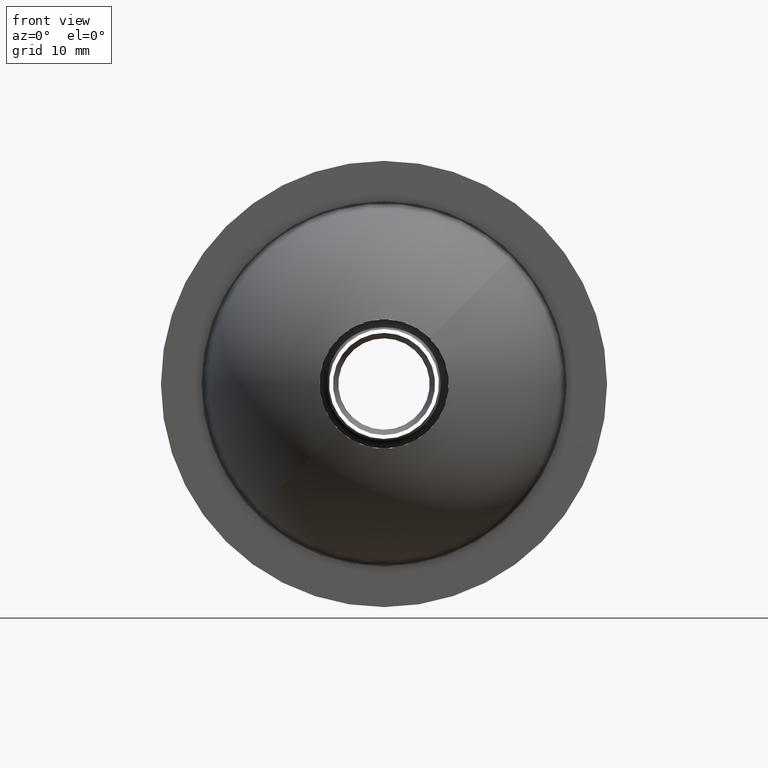
[diagram: clean part render]
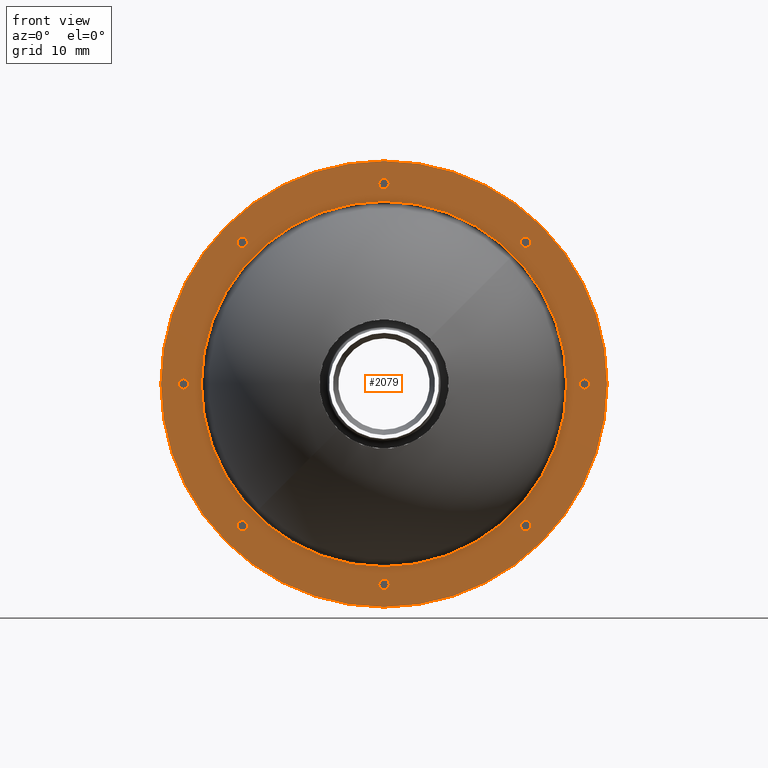
[diagram: same view with one face highlighted and labeled with its STEP entity id]
A machine part, front view. The second image highlights one B-rep face of the part: STEP entity #2079.
In plain terms, the highlighted planar face has unit normal (0, 1, 0).
Its self-contained STEP definition (entity closure, byte-faithful):
#42 = VERTEX_POINT ( 'NONE', #3492 ) ;
#53 = DIRECTION ( 'NONE',  ( 0.000000000000000000, 1.000000000000000000, 0.000000000000000000 ) ) ;
#93 = AXIS2_PLACEMENT_3D ( 'NONE', #969, #3651, #2121 ) ;
#124 = CARTESIAN_POINT ( 'NONE',  ( 39.48401894960830560, -21.91086588718419748, 0.000000000000000000 ) ) ;
#157 = CIRCLE ( 'NONE', #2049, 0.7999999999999986011 ) ;
#168 = VERTEX_POINT ( 'NONE', #2862 ) ;
#178 = EDGE_CURVE ( 'NONE', #3689, #1144, #1248, .T. ) ;
#179 = CIRCLE ( 'NONE', #3536, 0.7999999999999986011 ) ;
#189 = CARTESIAN_POINT ( 'NONE',  ( 30.40432916639154826, -21.91086588718419748, -21.12031021678270548 ) ) ;
#219 = DIRECTION ( 'NONE',  ( 0.000000000000000000, 0.000000000000000000, 1.000000000000000000 ) ) ;
#221 = AXIS2_PLACEMENT_3D ( 'NONE', #2807, #3407, #219 ) ;
#226 = DIRECTION ( 'NONE',  ( 0.000000000000000000, 0.000000000000000000, 1.000000000000000000 ) ) ;
#242 = EDGE_CURVE ( 'NONE', #2650, #42, #1193, .T. ) ;
#257 = DIRECTION ( 'NONE',  ( 0.000000000000000000, 1.000000000000000000, 0.000000000000000000 ) ) ;
#260 = CIRCLE ( 'NONE', #1597, 0.7999999999999986011 ) ;
#266 = CIRCLE ( 'NONE', #515, 0.8000000000000020428 ) ;
#304 = VERTEX_POINT ( 'NONE', #315 ) ;
#315 = CARTESIAN_POINT ( 'NONE',  ( 39.48401894960830560, -21.91086588718419748, 0.7999999999999986011 ) ) ;
#325 = AXIS2_PLACEMENT_3D ( 'NONE', #3525, #2333, #2642 ) ;
#329 = VERTEX_POINT ( 'NONE', #3524 ) ;
#379 = ORIENTED_EDGE ( 'NONE', *, *, #2395, .T. ) ;
#399 = VERTEX_POINT ( 'NONE', #1891 ) ;
#413 = EDGE_CURVE ( 'NONE', #42, #2650, #1614, .T. ) ;
#423 = CARTESIAN_POINT ( 'NONE',  ( -22.51598105039169084, -21.91086588718419748, 0.7999999999997821076 ) ) ;
#427 = FACE_BOUND ( 'NONE', #2842, .T. ) ;
#445 = AXIS2_PLACEMENT_3D ( 'NONE', #1868, #2689, #3283 ) ;
#481 = EDGE_CURVE ( 'NONE', #914, #2635, #3691, .T. ) ;
#501 = VERTEX_POINT ( 'NONE', #1395 ) ;
#515 = AXIS2_PLACEMENT_3D ( 'NONE', #1893, #3058, #2193 ) ;
#558 = DIRECTION ( 'NONE',  ( 0.000000000000000000, 1.000000000000000000, 0.000000000000000000 ) ) ;
#618 = EDGE_LOOP ( 'NONE', ( #3661, #3611 ) ) ;
#626 = CIRCLE ( 'NONE', #1107, 0.7999999999999986011 ) ;
#657 = CIRCLE ( 'NONE', #3266, 0.7999999999999986011 ) ;
#680 = CIRCLE ( 'NONE', #1172, 0.8000000000000020428 ) ;
#687 = AXIS2_PLACEMENT_3D ( 'NONE', #1169, #2666, #3239 ) ;
#690 = DIRECTION ( 'NONE',  ( 0.000000000000000000, 0.000000000000000000, 1.000000000000000000 ) ) ;
#703 = EDGE_CURVE ( 'NONE', #168, #2527, #2808, .T. ) ;
#711 = DIRECTION ( 'NONE',  ( 0.000000000000000000, 1.000000000000000000, 0.000000000000000000 ) ) ;
#728 = DIRECTION ( 'NONE',  ( 0.000000000000000000, 1.000000000000000000, 0.000000000000000000 ) ) ;
#733 = PLANE ( 'NONE',  #445 ) ;
#770 = CARTESIAN_POINT ( 'NONE',  ( -22.51598105039169084, -21.91086588718419748, -2.164719683887816881E-13 ) ) ;
#803 = CARTESIAN_POINT ( 'NONE',  ( 8.484018949608307381, -21.91086588718419748, -34.49999999999999289 ) ) ;
#867 = DIRECTION ( 'NONE',  ( 0.000000000000000000, 0.000000000000000000, 1.000000000000000000 ) ) ;
#872 = EDGE_CURVE ( 'NONE', #3315, #329, #2132, .T. ) ;
#886 = EDGE_LOOP ( 'NONE', ( #1642, #998 ) ) ;
#914 = VERTEX_POINT ( 'NONE', #3015 ) ;
#932 = EDGE_CURVE ( 'NONE', #2162, #304, #626, .T. ) ;
#969 = CARTESIAN_POINT ( 'NONE',  ( 8.484018949608307381, -21.91086588718419748, 0.000000000000000000 ) ) ;
#998 = ORIENTED_EDGE ( 'NONE', *, *, #932, .T. ) ;
#1006 = DIRECTION ( 'NONE',  ( 0.000000000000000000, 0.000000000000000000, 1.000000000000000000 ) ) ;
#1009 = DIRECTION ( 'NONE',  ( 0.000000000000000000, 0.000000000000000000, 1.000000000000000000 ) ) ;
#1010 = ORIENTED_EDGE ( 'NONE', *, *, #3115, .T. ) ;
#1065 = DIRECTION ( 'NONE',  ( 0.000000000000000000, 1.000000000000000000, 0.000000000000000000 ) ) ;
#1098 = EDGE_CURVE ( 'NONE', #1228, #1958, #680, .T. ) ;
#1107 = AXIS2_PLACEMENT_3D ( 'NONE', #1373, #3359, #226 ) ;
#1115 = ORIENTED_EDGE ( 'NONE', *, *, #3356, .T. ) ;
#1144 = VERTEX_POINT ( 'NONE', #3044 ) ;
#1163 = AXIS2_PLACEMENT_3D ( 'NONE', #2416, #3299, #690 ) ;
#1169 = CARTESIAN_POINT ( 'NONE',  ( -13.43629126717478250, -21.91086588718419748, 21.92031021678285896 ) ) ;
#1172 = AXIS2_PLACEMENT_3D ( 'NONE', #2019, #3495, #1736 ) ;
#1192 = ORIENTED_EDGE ( 'NONE', *, *, #413, .T. ) ;
#1193 = CIRCLE ( 'NONE', #1553, 28.24999999999999645 ) ;
#1201 = CIRCLE ( 'NONE', #1505, 0.7999999999999986011 ) ;
#1228 = VERTEX_POINT ( 'NONE', #1914 ) ;
#1242 = EDGE_LOOP ( 'NONE', ( #2648, #379 ) ) ;
#1248 = CIRCLE ( 'NONE', #1788, 0.7999999999999986011 ) ;
#1258 = EDGE_CURVE ( 'NONE', #304, #2162, #657, .T. ) ;
#1271 = CARTESIAN_POINT ( 'NONE',  ( -22.51598105039169084, -21.91086588718419748, -2.164719683887816881E-13 ) ) ;
#1276 = VERTEX_POINT ( 'NONE', #2718 ) ;
#1280 = EDGE_CURVE ( 'NONE', #501, #2468, #1201, .T. ) ;
#1281 = FACE_BOUND ( 'NONE', #2396, .T. ) ;
#1312 = EDGE_LOOP ( 'NONE', ( #1115, #3183 ) ) ;
#1373 = CARTESIAN_POINT ( 'NONE',  ( 39.48401894960830560, -21.91086588718419748, 0.000000000000000000 ) ) ;
#1395 = CARTESIAN_POINT ( 'NONE',  ( -22.51598105039169084, -21.91086588718419748, -0.8000000000002150946 ) ) ;
#1409 = EDGE_CURVE ( 'NONE', #2635, #914, #3519, .T. ) ;
#1428 = VERTEX_POINT ( 'NONE', #1483 ) ;
#1483 = CARTESIAN_POINT ( 'NONE',  ( -13.43629126717447342, -21.91086588718419748, -22.72031021678316165 ) ) ;
#1505 = AXIS2_PLACEMENT_3D ( 'NONE', #1271, #3599, #1009 ) ;
#1511 = ORIENTED_EDGE ( 'NONE', *, *, #481, .F. ) ;
#1526 = EDGE_CURVE ( 'NONE', #2527, #168, #3737, .T. ) ;
#1553 = AXIS2_PLACEMENT_3D ( 'NONE', #2052, #2353, #1782 ) ;
#1571 = FACE_BOUND ( 'NONE', #3050, .T. ) ;
#1597 = AXIS2_PLACEMENT_3D ( 'NONE', #3414, #2207, #3378 ) ;
#1608 = EDGE_CURVE ( 'NONE', #1958, #1228, #266, .T. ) ;
#1614 = CIRCLE ( 'NONE', #93, 28.24999999999999645 ) ;
#1642 = ORIENTED_EDGE ( 'NONE', *, *, #1258, .T. ) ;
#1703 = CIRCLE ( 'NONE', #1163, 0.7999999999999986011 ) ;
#1706 = CARTESIAN_POINT ( 'NONE',  ( 30.40432916639154826, -21.91086588718419748, -21.92031021678270619 ) ) ;
#1732 = ORIENTED_EDGE ( 'NONE', *, *, #1526, .T. ) ;
#1736 = DIRECTION ( 'NONE',  ( 0.000000000000000000, 0.000000000000000000, 1.000000000000000000 ) ) ;
#1743 = CARTESIAN_POINT ( 'NONE',  ( 8.484018949608200799, -21.91086588718419748, 31.80000000000000071 ) ) ;
#1744 = ORIENTED_EDGE ( 'NONE', *, *, #2217, .T. ) ;
#1759 = CARTESIAN_POINT ( 'NONE',  ( 8.484018949608632454, -21.91086588718419748, -31.00000000000000000 ) ) ;
#1782 = DIRECTION ( 'NONE',  ( 0.000000000000000000, 0.000000000000000000, 1.000000000000000000 ) ) ;
#1788 = AXIS2_PLACEMENT_3D ( 'NONE', #1706, #257, #2214 ) ;
#1822 = EDGE_LOOP ( 'NONE', ( #1192, #2906 ) ) ;
#1823 = CIRCLE ( 'NONE', #2180, 0.7999999999999986011 ) ;
#1853 = CARTESIAN_POINT ( 'NONE',  ( 8.484018949608307381, -21.91086588718419748, 0.000000000000000000 ) ) ;
#1868 = CARTESIAN_POINT ( 'NONE',  ( 8.484018949608307381, -21.91086588718419748, 0.000000000000000000 ) ) ;
#1891 = CARTESIAN_POINT ( 'NONE',  ( -13.43629126717478250, -21.91086588718419748, 21.12031021678285825 ) ) ;
#1893 = CARTESIAN_POINT ( 'NONE',  ( 8.484018949608200799, -21.91086588718419748, 31.00000000000000000 ) ) ;
#1914 = CARTESIAN_POINT ( 'NONE',  ( 8.484018949608200799, -21.91086588718419748, 30.20000000000000284 ) ) ;
#1935 = AXIS2_PLACEMENT_3D ( 'NONE', #3309, #53, #2966 ) ;
#1958 = VERTEX_POINT ( 'NONE', #1743 ) ;
#1974 = CARTESIAN_POINT ( 'NONE',  ( 8.484018949608310933, -21.91086588718419748, 28.24999999999999645 ) ) ;
#1975 = ORIENTED_EDGE ( 'NONE', *, *, #3100, .T. ) ;
#2019 = CARTESIAN_POINT ( 'NONE',  ( 8.484018949608200799, -21.91086588718419748, 31.00000000000000000 ) ) ;
#2049 = AXIS2_PLACEMENT_3D ( 'NONE', #2917, #558, #867 ) ;
#2052 = CARTESIAN_POINT ( 'NONE',  ( 8.484018949608307381, -21.91086588718419748, 0.000000000000000000 ) ) ;
#2079 = ADVANCED_FACE ( 'NONE', ( #1571, #427, #1281, #2169, #2439, #2745, #2119, #3630, #2457, #3036 ), #733, .F. ) ;
#2119 = FACE_BOUND ( 'NONE', #1242, .T. ) ;
#2121 = DIRECTION ( 'NONE',  ( 0.000000000000000000, 0.000000000000000000, 1.000000000000000000 ) ) ;
#2131 = DIRECTION ( 'NONE',  ( 0.000000000000000000, 0.000000000000000000, 1.000000000000000000 ) ) ;
#2132 = CIRCLE ( 'NONE', #2801, 0.7999999999999986011 ) ;
#2148 = DIRECTION ( 'NONE',  ( 0.000000000000000000, 0.000000000000000000, 1.000000000000000000 ) ) ;
#2153 = CARTESIAN_POINT ( 'NONE',  ( 30.40432916639124272, -21.91086588718419748, 21.92031021678301528 ) ) ;
#2162 = VERTEX_POINT ( 'NONE', #3455 ) ;
#2169 = FACE_BOUND ( 'NONE', #2356, .T. ) ;
#2180 = AXIS2_PLACEMENT_3D ( 'NONE', #3372, #711, #3625 ) ;
#2193 = DIRECTION ( 'NONE',  ( 0.000000000000000000, 0.000000000000000000, 1.000000000000000000 ) ) ;
#2207 = DIRECTION ( 'NONE',  ( 0.000000000000000000, 1.000000000000000000, 0.000000000000000000 ) ) ;
#2214 = DIRECTION ( 'NONE',  ( 0.000000000000000000, 0.000000000000000000, 1.000000000000000000 ) ) ;
#2217 = EDGE_CURVE ( 'NONE', #1428, #1276, #260, .T. ) ;
#2273 = EDGE_CURVE ( 'NONE', #399, #3242, #2327, .T. ) ;
#2327 = CIRCLE ( 'NONE', #687, 0.7999999999999986011 ) ;
#2333 = DIRECTION ( 'NONE',  ( 0.000000000000000000, 1.000000000000000000, 0.000000000000000000 ) ) ;
#2353 = DIRECTION ( 'NONE',  ( 0.000000000000000000, 1.000000000000000000, 0.000000000000000000 ) ) ;
#2356 = EDGE_LOOP ( 'NONE', ( #1975, #3621 ) ) ;
#2395 = EDGE_CURVE ( 'NONE', #329, #3315, #157, .T. ) ;
#2396 = EDGE_LOOP ( 'NONE', ( #1010, #1744 ) ) ;
#2406 = EDGE_LOOP ( 'NONE', ( #2916, #1511 ) ) ;
#2409 = CARTESIAN_POINT ( 'NONE',  ( 30.40432916639124272, -21.91086588718419748, 22.72031021678301244 ) ) ;
#2416 = CARTESIAN_POINT ( 'NONE',  ( -13.43629126717447342, -21.91086588718419748, -21.92031021678316449 ) ) ;
#2439 = FACE_BOUND ( 'NONE', #1312, .T. ) ;
#2448 = DIRECTION ( 'NONE',  ( 0.000000000000000000, 0.000000000000000000, 1.000000000000000000 ) ) ;
#2457 = FACE_OUTER_BOUND ( 'NONE', #2406, .T. ) ;
#2468 = VERTEX_POINT ( 'NONE', #423 ) ;
#2527 = VERTEX_POINT ( 'NONE', #3257 ) ;
#2593 = DIRECTION ( 'NONE',  ( 0.000000000000000000, 0.000000000000000000, 1.000000000000000000 ) ) ;
#2624 = CARTESIAN_POINT ( 'NONE',  ( -13.43629126717478250, -21.91086588718419748, 22.72031021678285612 ) ) ;
#2635 = VERTEX_POINT ( 'NONE', #803 ) ;
#2642 = DIRECTION ( 'NONE',  ( 0.000000000000000000, 0.000000000000000000, 1.000000000000000000 ) ) ;
#2648 = ORIENTED_EDGE ( 'NONE', *, *, #872, .T. ) ;
#2650 = VERTEX_POINT ( 'NONE', #1974 ) ;
#2666 = DIRECTION ( 'NONE',  ( 0.000000000000000000, 1.000000000000000000, 0.000000000000000000 ) ) ;
#2687 = AXIS2_PLACEMENT_3D ( 'NONE', #1759, #2922, #2593 ) ;
#2689 = DIRECTION ( 'NONE',  ( 0.000000000000000000, 1.000000000000000000, 0.000000000000000000 ) ) ;
#2718 = CARTESIAN_POINT ( 'NONE',  ( -13.43629126717447342, -21.91086588718419748, -21.12031021678316378 ) ) ;
#2730 = DIRECTION ( 'NONE',  ( 0.000000000000000000, 1.000000000000000000, 0.000000000000000000 ) ) ;
#2743 = DIRECTION ( 'NONE',  ( 0.000000000000000000, 1.000000000000000000, 0.000000000000000000 ) ) ;
#2745 = FACE_BOUND ( 'NONE', #618, .T. ) ;
#2801 = AXIS2_PLACEMENT_3D ( 'NONE', #2153, #2743, #2131 ) ;
#2807 = CARTESIAN_POINT ( 'NONE',  ( 8.484018949608307381, -21.91086588718419748, 0.000000000000000000 ) ) ;
#2808 = CIRCLE ( 'NONE', #2687, 0.7999999999999986011 ) ;
#2842 = EDGE_LOOP ( 'NONE', ( #1732, #2914 ) ) ;
#2862 = CARTESIAN_POINT ( 'NONE',  ( 8.484018949608632454, -21.91086588718419748, -31.80000000000000071 ) ) ;
#2906 = ORIENTED_EDGE ( 'NONE', *, *, #242, .T. ) ;
#2914 = ORIENTED_EDGE ( 'NONE', *, *, #703, .T. ) ;
#2916 = ORIENTED_EDGE ( 'NONE', *, *, #1409, .F. ) ;
#2917 = CARTESIAN_POINT ( 'NONE',  ( 30.40432916639124272, -21.91086588718419748, 21.92031021678301528 ) ) ;
#2922 = DIRECTION ( 'NONE',  ( 0.000000000000000000, 1.000000000000000000, 0.000000000000000000 ) ) ;
#2966 = DIRECTION ( 'NONE',  ( 0.000000000000000000, 0.000000000000000000, 1.000000000000000000 ) ) ;
#3015 = CARTESIAN_POINT ( 'NONE',  ( 8.484018949608310933, -21.91086588718419748, 34.49999999999999289 ) ) ;
#3036 = FACE_BOUND ( 'NONE', #1822, .T. ) ;
#3044 = CARTESIAN_POINT ( 'NONE',  ( 30.40432916639154826, -21.91086588718419748, -22.72031021678270335 ) ) ;
#3050 = EDGE_LOOP ( 'NONE', ( #3555, #3701 ) ) ;
#3058 = DIRECTION ( 'NONE',  ( 0.000000000000000000, 1.000000000000000000, 0.000000000000000000 ) ) ;
#3078 = AXIS2_PLACEMENT_3D ( 'NONE', #1853, #2730, #1006 ) ;
#3079 = EDGE_CURVE ( 'NONE', #1144, #3689, #1823, .T. ) ;
#3100 = EDGE_CURVE ( 'NONE', #2468, #501, #179, .T. ) ;
#3115 = EDGE_CURVE ( 'NONE', #1276, #1428, #1703, .T. ) ;
#3183 = ORIENTED_EDGE ( 'NONE', *, *, #2273, .T. ) ;
#3239 = DIRECTION ( 'NONE',  ( 0.000000000000000000, 0.000000000000000000, 1.000000000000000000 ) ) ;
#3242 = VERTEX_POINT ( 'NONE', #2624 ) ;
#3257 = CARTESIAN_POINT ( 'NONE',  ( 8.484018949608632454, -21.91086588718419748, -30.20000000000000284 ) ) ;
#3266 = AXIS2_PLACEMENT_3D ( 'NONE', #124, #1065, #2448 ) ;
#3283 = DIRECTION ( 'NONE',  ( 0.000000000000000000, -0.000000000000000000, 1.000000000000000000 ) ) ;
#3299 = DIRECTION ( 'NONE',  ( 0.000000000000000000, 1.000000000000000000, 0.000000000000000000 ) ) ;
#3309 = CARTESIAN_POINT ( 'NONE',  ( -13.43629126717478250, -21.91086588718419748, 21.92031021678285896 ) ) ;
#3315 = VERTEX_POINT ( 'NONE', #2409 ) ;
#3336 = CIRCLE ( 'NONE', #1935, 0.7999999999999986011 ) ;
#3356 = EDGE_CURVE ( 'NONE', #3242, #399, #3336, .T. ) ;
#3359 = DIRECTION ( 'NONE',  ( 0.000000000000000000, 1.000000000000000000, 0.000000000000000000 ) ) ;
#3372 = CARTESIAN_POINT ( 'NONE',  ( 30.40432916639154826, -21.91086588718419748, -21.92031021678270619 ) ) ;
#3378 = DIRECTION ( 'NONE',  ( 0.000000000000000000, 0.000000000000000000, 1.000000000000000000 ) ) ;
#3407 = DIRECTION ( 'NONE',  ( 0.000000000000000000, 1.000000000000000000, 0.000000000000000000 ) ) ;
#3414 = CARTESIAN_POINT ( 'NONE',  ( -13.43629126717447342, -21.91086588718419748, -21.92031021678316449 ) ) ;
#3455 = CARTESIAN_POINT ( 'NONE',  ( 39.48401894960830560, -21.91086588718419748, -0.7999999999999986011 ) ) ;
#3492 = CARTESIAN_POINT ( 'NONE',  ( 8.484018949608307381, -21.91086588718419748, -28.24999999999999645 ) ) ;
#3495 = DIRECTION ( 'NONE',  ( 0.000000000000000000, 1.000000000000000000, 0.000000000000000000 ) ) ;
#3519 = CIRCLE ( 'NONE', #221, 34.49999999999999289 ) ;
#3524 = CARTESIAN_POINT ( 'NONE',  ( 30.40432916639124272, -21.91086588718419748, 21.12031021678301457 ) ) ;
#3525 = CARTESIAN_POINT ( 'NONE',  ( 8.484018949608632454, -21.91086588718419748, -31.00000000000000000 ) ) ;
#3536 = AXIS2_PLACEMENT_3D ( 'NONE', #770, #728, #2148 ) ;
#3555 = ORIENTED_EDGE ( 'NONE', *, *, #178, .T. ) ;
#3599 = DIRECTION ( 'NONE',  ( 0.000000000000000000, 1.000000000000000000, 0.000000000000000000 ) ) ;
#3611 = ORIENTED_EDGE ( 'NONE', *, *, #1098, .T. ) ;
#3621 = ORIENTED_EDGE ( 'NONE', *, *, #1280, .T. ) ;
#3625 = DIRECTION ( 'NONE',  ( 0.000000000000000000, 0.000000000000000000, 1.000000000000000000 ) ) ;
#3630 = FACE_BOUND ( 'NONE', #886, .T. ) ;
#3651 = DIRECTION ( 'NONE',  ( 0.000000000000000000, 1.000000000000000000, 0.000000000000000000 ) ) ;
#3661 = ORIENTED_EDGE ( 'NONE', *, *, #1608, .T. ) ;
#3689 = VERTEX_POINT ( 'NONE', #189 ) ;
#3691 = CIRCLE ( 'NONE', #3078, 34.49999999999999289 ) ;
#3701 = ORIENTED_EDGE ( 'NONE', *, *, #3079, .T. ) ;
#3737 = CIRCLE ( 'NONE', #325, 0.7999999999999986011 ) ;